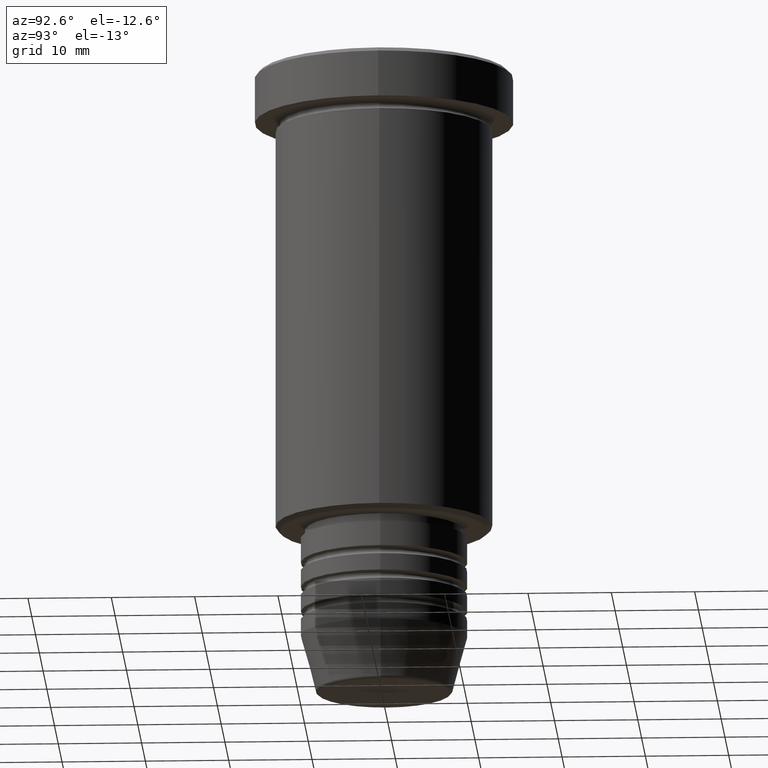
[diagram: clean part render]
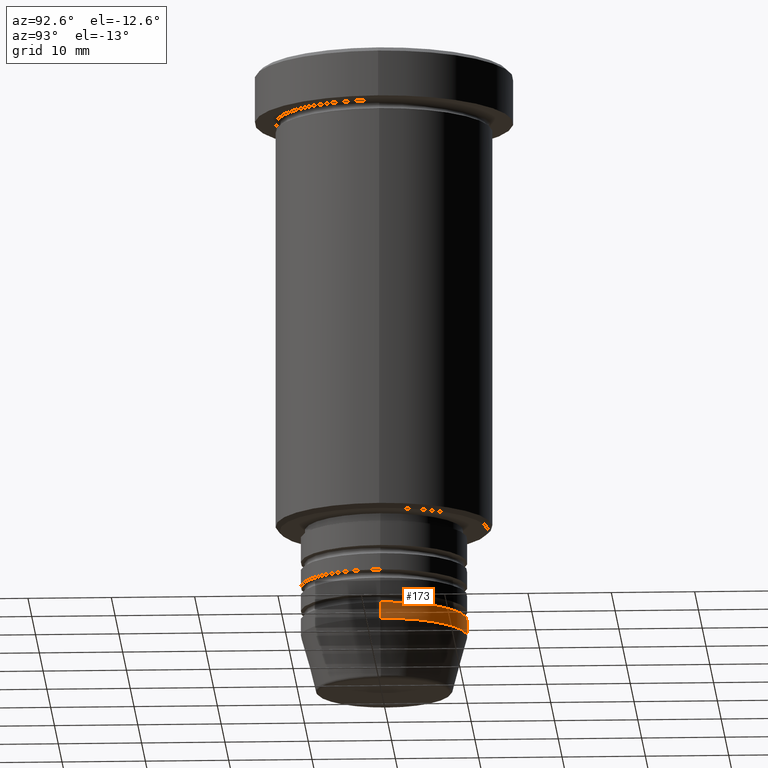
[diagram: same view with one face highlighted and labeled with its STEP entity id]
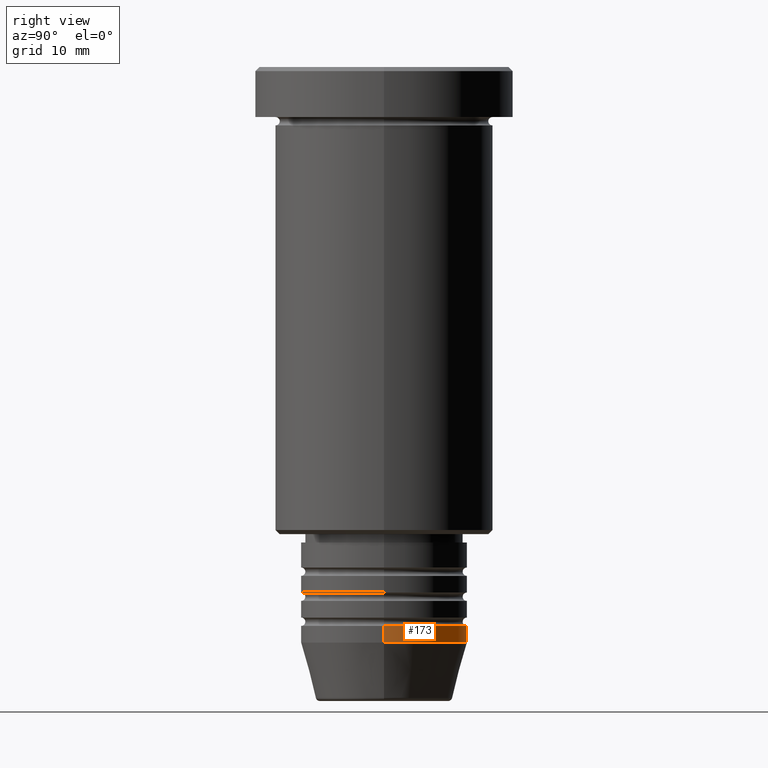
[diagram: same view with one face highlighted and labeled with its STEP entity id]
A machine part, auxiliary view. The second image highlights one B-rep face of the part: STEP entity #173.
A second angle (right view) of the same face is appended — the face is thin or edge-on in the first view.
In plain terms, the highlighted cylindrical surface (partial cylindrical patch) has radius 10 mm, axis along (-0, -0, 1).
Its self-contained STEP definition (entity closure, byte-faithful):
#3 = CARTESIAN_POINT ( 'NONE',  ( 10.00000000000000000, 0.000000000000000000, -67.00000000000000000 ) ) ;
#31 = CARTESIAN_POINT ( 'NONE',  ( 0.000000000000000000, 0.000000000000000000, -69.00000000000000000 ) ) ;
#116 = VERTEX_POINT ( 'NONE', #181 ) ;
#149 = VERTEX_POINT ( 'NONE', #3 ) ;
#162 = CARTESIAN_POINT ( 'NONE',  ( -10.00000000000000000, 1.224646799147353256E-15, -69.00000000000000000 ) ) ;
#173 = ADVANCED_FACE ( 'NONE', ( #637 ), #922, .T. ) ;
#181 = CARTESIAN_POINT ( 'NONE',  ( 10.00000000000000000, 0.000000000000000000, -69.00000000000000000 ) ) ;
#206 = ORIENTED_EDGE ( 'NONE', *, *, #1055, .F. ) ;
#237 = ORIENTED_EDGE ( 'NONE', *, *, #307, .T. ) ;
#263 = DIRECTION ( 'NONE',  ( 1.000000000000000000, 0.000000000000000000, 0.000000000000000000 ) ) ;
#284 = DIRECTION ( 'NONE',  ( -0.000000000000000000, -0.000000000000000000, 1.000000000000000000 ) ) ;
#307 = EDGE_CURVE ( 'NONE', #116, #1049, #937, .T. ) ;
#313 = LINE ( 'NONE', #674, #879 ) ;
#344 = LINE ( 'NONE', #978, #1103 ) ;
#359 = CIRCLE ( 'NONE', #1009, 10.00000000000000000 ) ;
#423 = CARTESIAN_POINT ( 'NONE',  ( 0.000000000000000000, 0.000000000000000000, -67.00000000000000000 ) ) ;
#432 = CARTESIAN_POINT ( 'NONE',  ( 0.000000000000000000, 0.000000000000000000, 0.000000000000000000 ) ) ;
#433 = ORIENTED_EDGE ( 'NONE', *, *, #909, .T. ) ;
#532 = CARTESIAN_POINT ( 'NONE',  ( -10.00000000000000000, 1.224646799147353256E-15, -67.00000000000000000 ) ) ;
#533 = AXIS2_PLACEMENT_3D ( 'NONE', #432, #1078, #263 ) ;
#603 = EDGE_LOOP ( 'NONE', ( #237, #433, #655, #206 ) ) ;
#606 = AXIS2_PLACEMENT_3D ( 'NONE', #31, #284, #659 ) ;
#637 = FACE_OUTER_BOUND ( 'NONE', #603, .T. ) ;
#655 = ORIENTED_EDGE ( 'NONE', *, *, #888, .F. ) ;
#659 = DIRECTION ( 'NONE',  ( 1.000000000000000000, 0.000000000000000000, 0.000000000000000000 ) ) ;
#674 = CARTESIAN_POINT ( 'NONE',  ( -10.00000000000000000, 1.224646799147353256E-15, 0.000000000000000000 ) ) ;
#695 = VERTEX_POINT ( 'NONE', #532 ) ;
#765 = DIRECTION ( 'NONE',  ( 1.000000000000000000, 0.000000000000000000, 0.000000000000000000 ) ) ;
#768 = DIRECTION ( 'NONE',  ( -0.000000000000000000, -0.000000000000000000, 1.000000000000000000 ) ) ;
#879 = VECTOR ( 'NONE', #1039, 1000.000000000000000 ) ;
#884 = DIRECTION ( 'NONE',  ( -0.000000000000000000, -0.000000000000000000, 1.000000000000000000 ) ) ;
#888 = EDGE_CURVE ( 'NONE', #149, #695, #359, .T. ) ;
#909 = EDGE_CURVE ( 'NONE', #1049, #695, #313, .T. ) ;
#922 = CYLINDRICAL_SURFACE ( 'NONE', #533, 10.00000000000000000 ) ;
#937 = CIRCLE ( 'NONE', #606, 10.00000000000000000 ) ;
#978 = CARTESIAN_POINT ( 'NONE',  ( 10.00000000000000000, 0.000000000000000000, 0.000000000000000000 ) ) ;
#1009 = AXIS2_PLACEMENT_3D ( 'NONE', #423, #768, #765 ) ;
#1039 = DIRECTION ( 'NONE',  ( -0.000000000000000000, -0.000000000000000000, 1.000000000000000000 ) ) ;
#1049 = VERTEX_POINT ( 'NONE', #162 ) ;
#1055 = EDGE_CURVE ( 'NONE', #116, #149, #344, .T. ) ;
#1078 = DIRECTION ( 'NONE',  ( -0.000000000000000000, -0.000000000000000000, 1.000000000000000000 ) ) ;
#1103 = VECTOR ( 'NONE', #884, 1000.000000000000000 ) ;